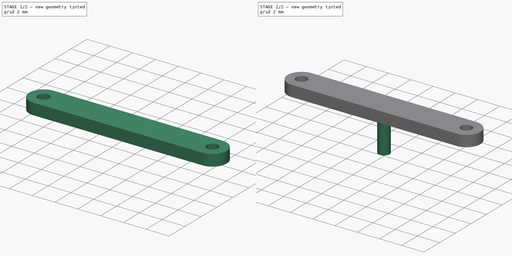
[diagram: build sequence overview — one tinted view per stage of 2, left to right]
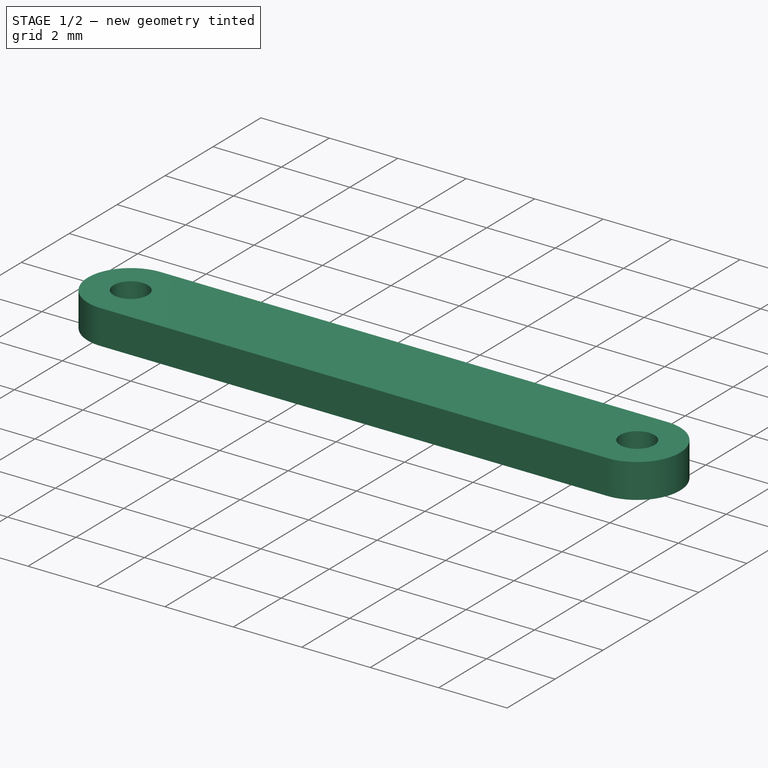
[diagram: stage 1 of 2 — iso view after this stage's code; geometry added in this stage tinted green]
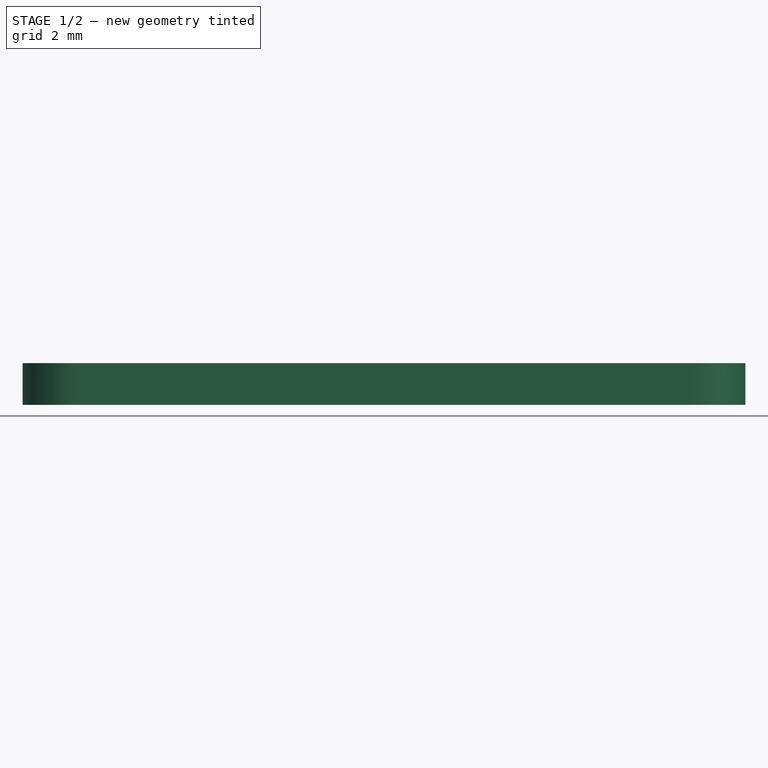
[diagram: stage 1 of 2 — front view after this stage's code; geometry added in this stage tinted green]
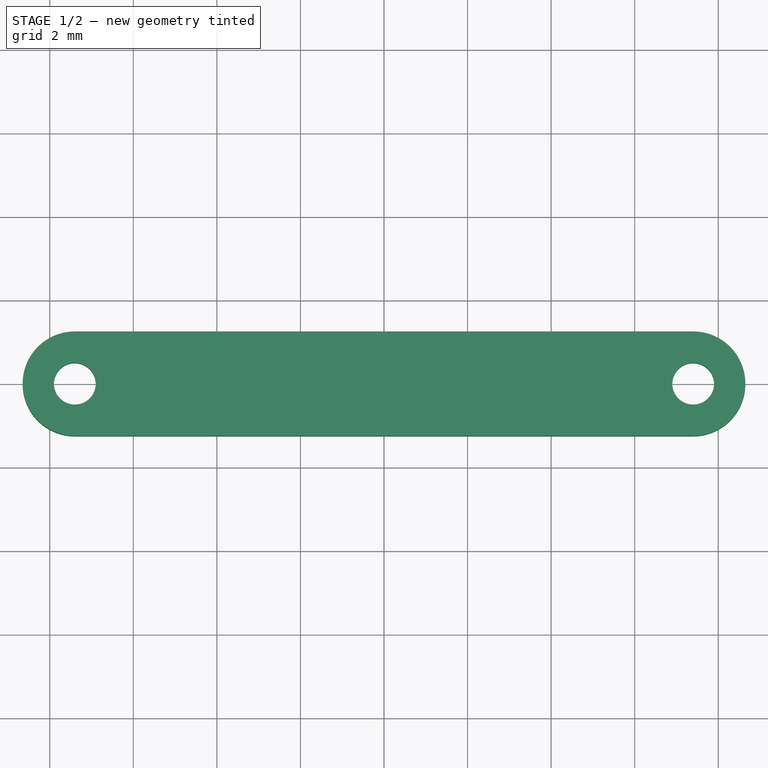
[diagram: stage 1 of 2 — top view after this stage's code; geometry added in this stage tinted green]
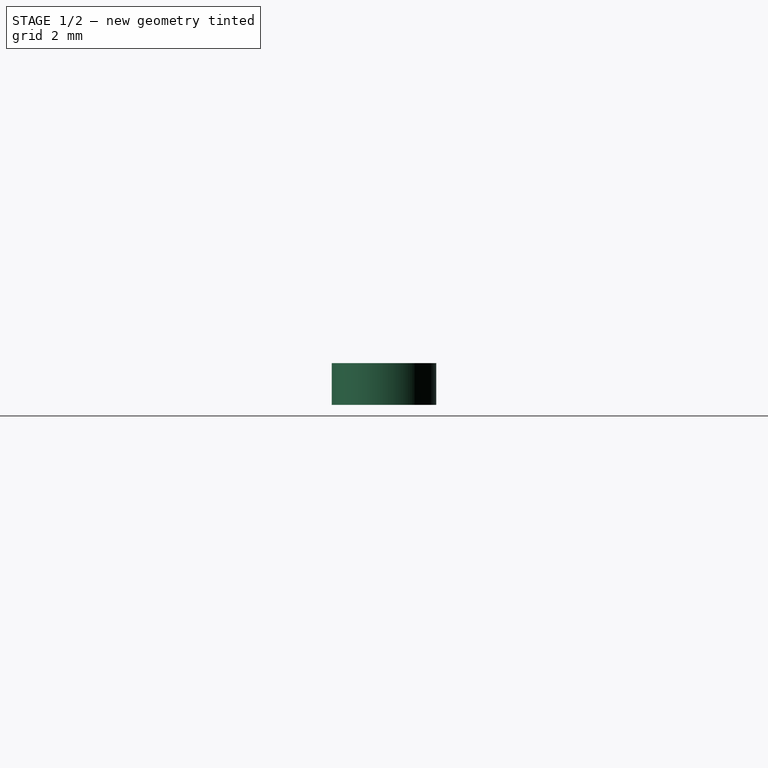
[diagram: stage 1 of 2 — right view after this stage's code; geometry added in this stage tinted green]
FCSTD DOCUMENT  (FreeCAD 0.16R6264 (Git))
Label: Dir_F
License: All rights reserved
LicenseURL: http://en.wikipedia.org/wiki/All_rights_reserved
objects: Sketcher::SketchObject×3, PartDesign::Pad×2, PartDesign::Pocket×1
note: 9 computed .brp shape members not serialized (recipe doc carries the construction recipe); baked Part::Feature solids carry a one-line shape summary decoded from their .brp

FEATURE [Sketcher::SketchObject] Sketch
  sketch-geometry (4):
    g0: ArcOfCircle CenterX=-7.4 CenterY=0 CenterZ=0 NormalX=0 NormalY=0 NormalZ=1 Radius=1.25 StartAngle=1.5708 EndAngle=4.71239
    g1: ArcOfCircle CenterX=7.4 CenterY=0 CenterZ=0 NormalX=0 NormalY=0 NormalZ=1 Radius=1.25 StartAngle=4.71239 EndAngle=7.85398
    g2: LineSegment StartX=-7.4 StartY=-1.25 StartZ=0 EndX=7.4 EndY=-1.25 EndZ=0
    g3: LineSegment StartX=-7.4 StartY=1.25 StartZ=0 EndX=7.4 EndY=1.25 EndZ=0
  constraints (10):
    c: Tangent(g0,g3) = 1.5708
    c: Tangent(g0,g2) = -1.5708
    c: Tangent(g2,g1) = -1.5708
    c: Tangent(g3,g1) = 1.5708
    c: Horizontal(g2)
    c: Equal(g0,g1)
    c: PointOnObject(g0,g-1)
    c: DistanceX(g0,g1) = 14.8
    c: Radius(g1) = 1.25
    c: DistanceX(g1) = 7.4
FEATURE [PartDesign::Pad] Pad
  Length = 1
  Length2 = 100
  Sketch = -> Sketch
  Type = 0
FEATURE [Sketcher::SketchObject] Sketch001
  Placement = pos=(0,0,1) rot=(0,0,1;0rad)
  Support = -> Pad [Face6]
  sketch-geometry (2):
    g0: Circle CenterX=-7.4 CenterY=0 CenterZ=0 NormalX=0 NormalY=0 NormalZ=1 Radius=0.5
    g1: Circle CenterX=7.4 CenterY=0 CenterZ=0 NormalX=0 NormalY=0 NormalZ=1 Radius=0.5
  constraints (6):
    c: PointOnObject(g0,g-1)
    c: PointOnObject(g1,g-1)
    c: DistanceX(g1,g0) = -14.8
    c: Radius(g1) = 0.5
    c: Equal(g1,g0)
    c: DistanceX(g1) = 7.4
FEATURE [PartDesign::Pocket] Pocket
  Length = 1
  Sketch = -> Sketch001
  Type = 0
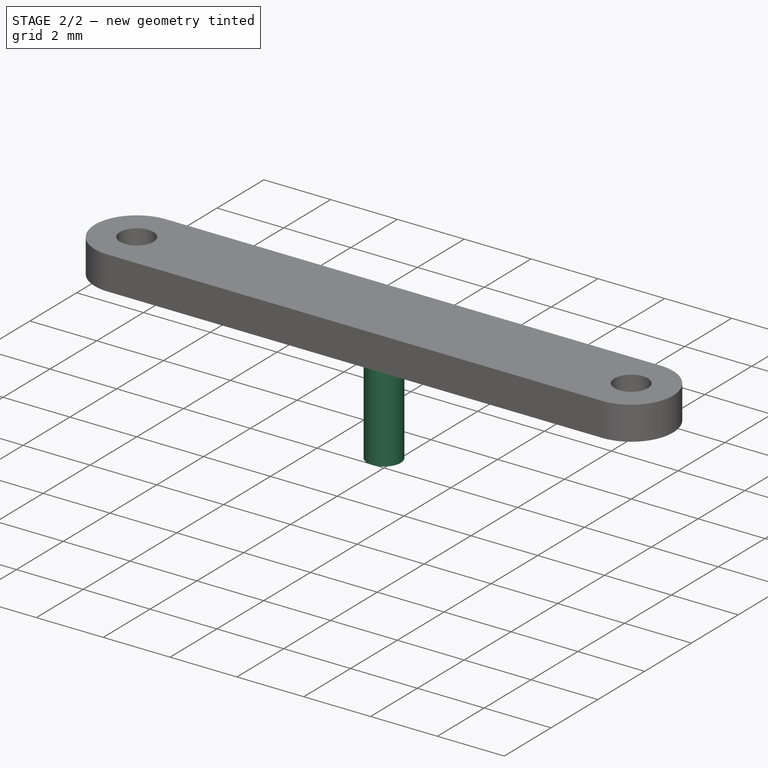
[diagram: stage 2 of 2 — iso view after this stage's code; geometry added in this stage tinted green]
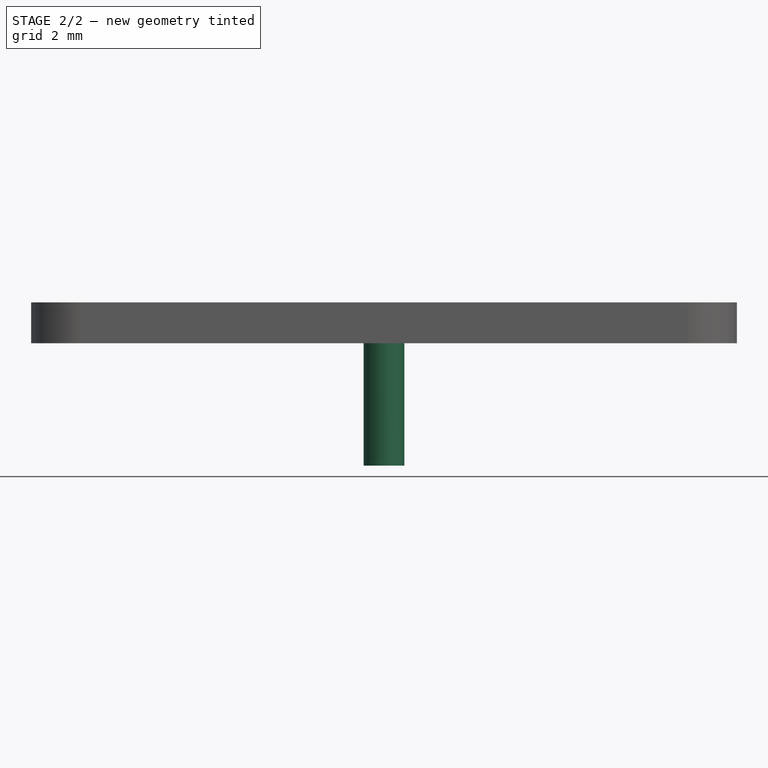
[diagram: stage 2 of 2 — front view after this stage's code; geometry added in this stage tinted green]
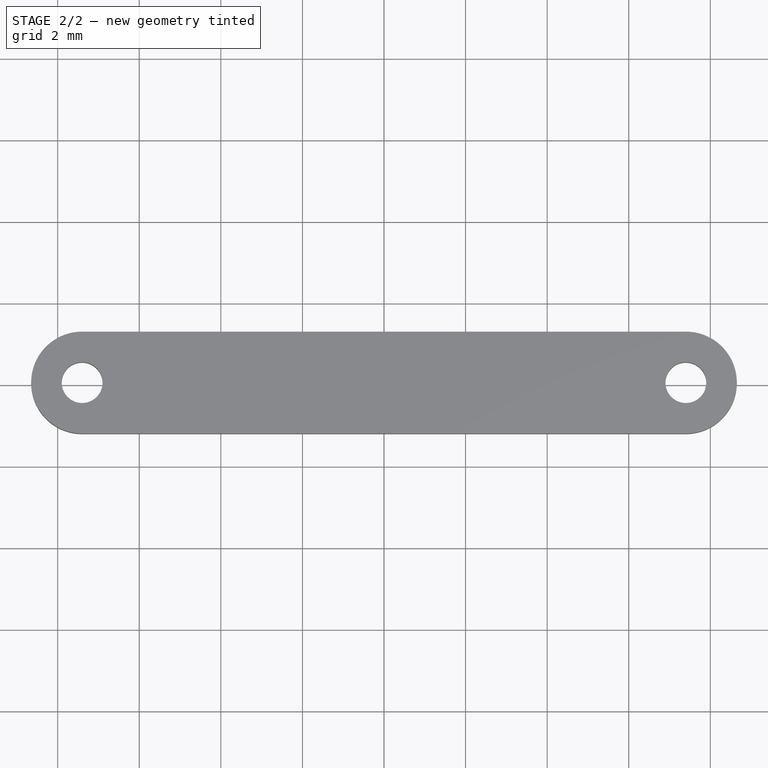
[diagram: stage 2 of 2 — top view after this stage's code; geometry added in this stage tinted green]
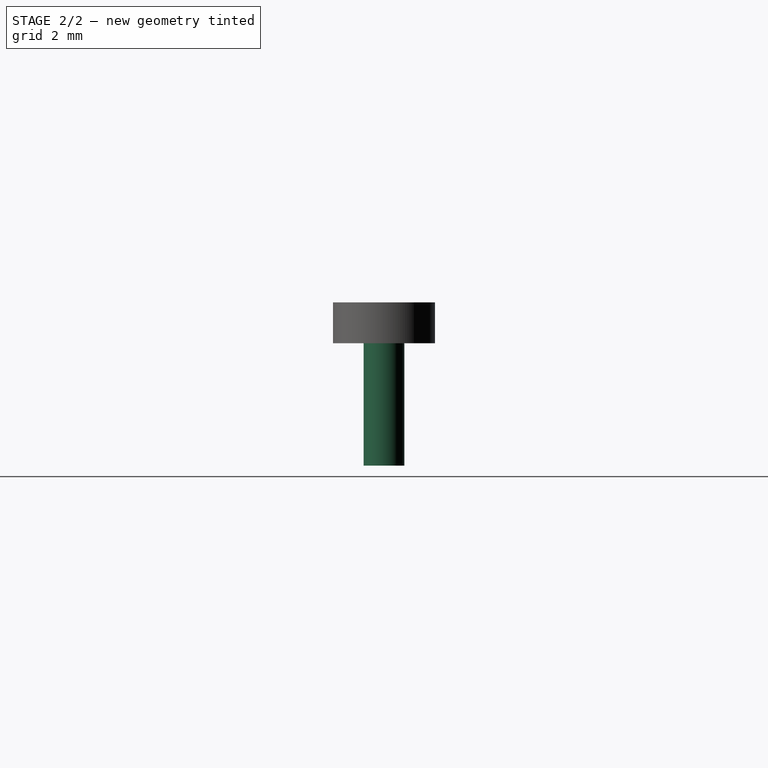
[diagram: stage 2 of 2 — right view after this stage's code; geometry added in this stage tinted green]
FEATURE [Sketcher::SketchObject] Sketch002
  Placement = pos=(0,0,0) rot=(1,0,0;3.14159rad)
  Support = -> Pocket [Face4]
  sketch-geometry (1):
    g0: Circle CenterX=0 CenterY=0 CenterZ=0 NormalX=0 NormalY=0 NormalZ=1 Radius=0.5
  constraints (2):
    c: Coincident(g0,g-1)
    c: Radius(g0) = 0.5
FEATURE [PartDesign::Pad] Pad001
  Length = 3
  Length2 = 100
  Sketch = -> Sketch002
  Type = 0
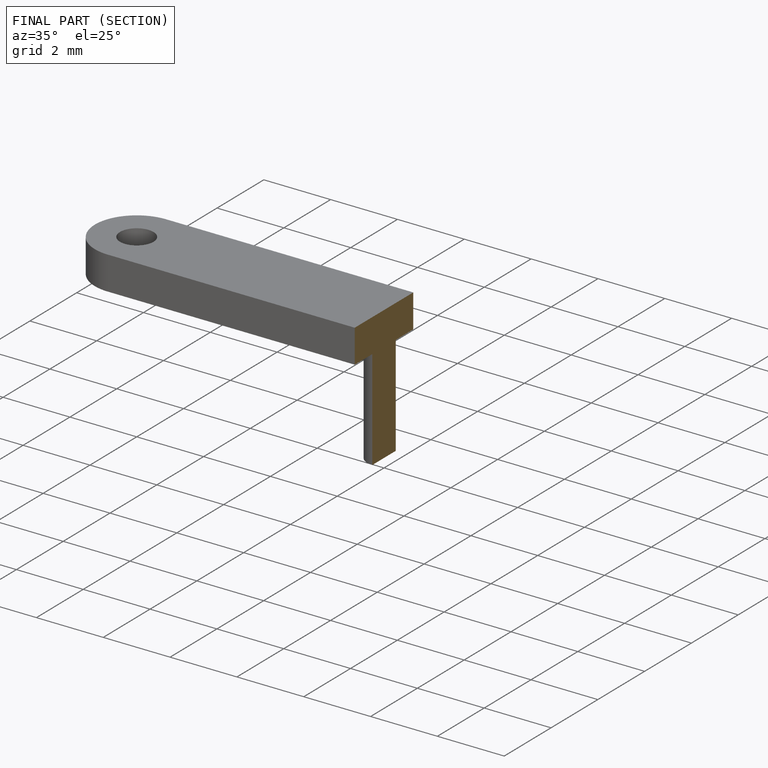
[diagram: finished part — half-section view (interior)]
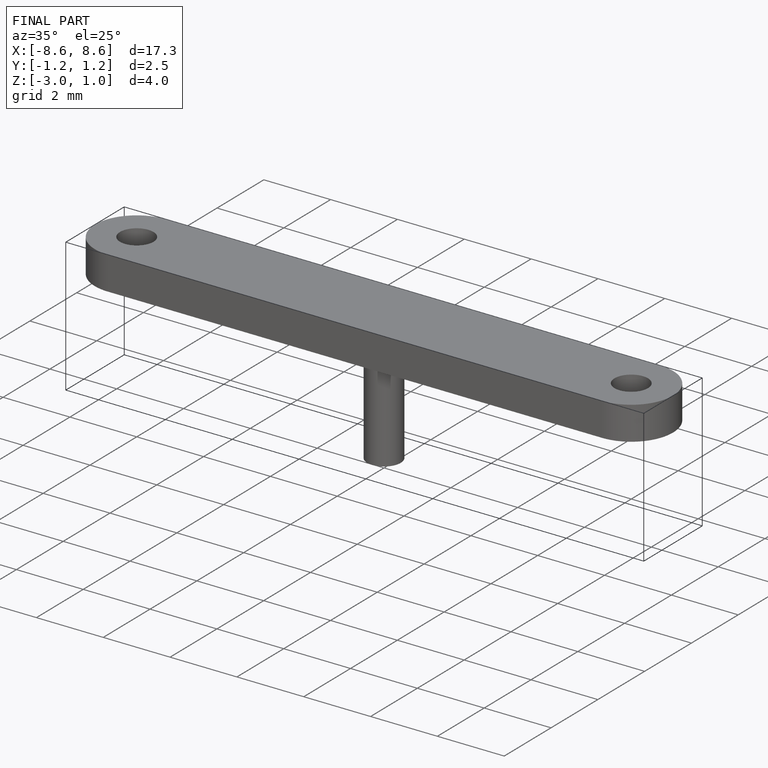
[diagram: finished part — iso view with bounding-box wireframe]
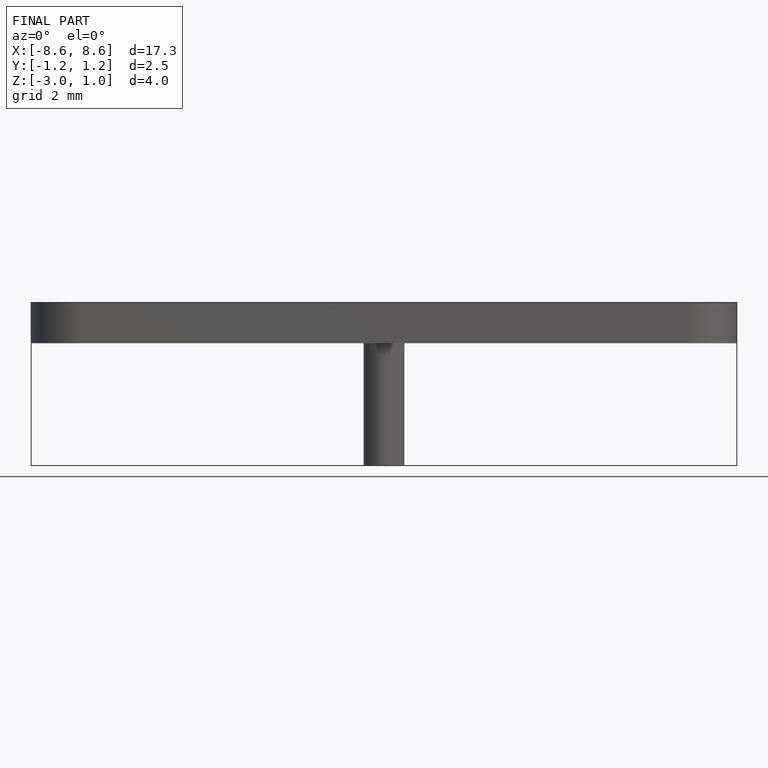
[diagram: finished part — front view with bounding-box wireframe]
